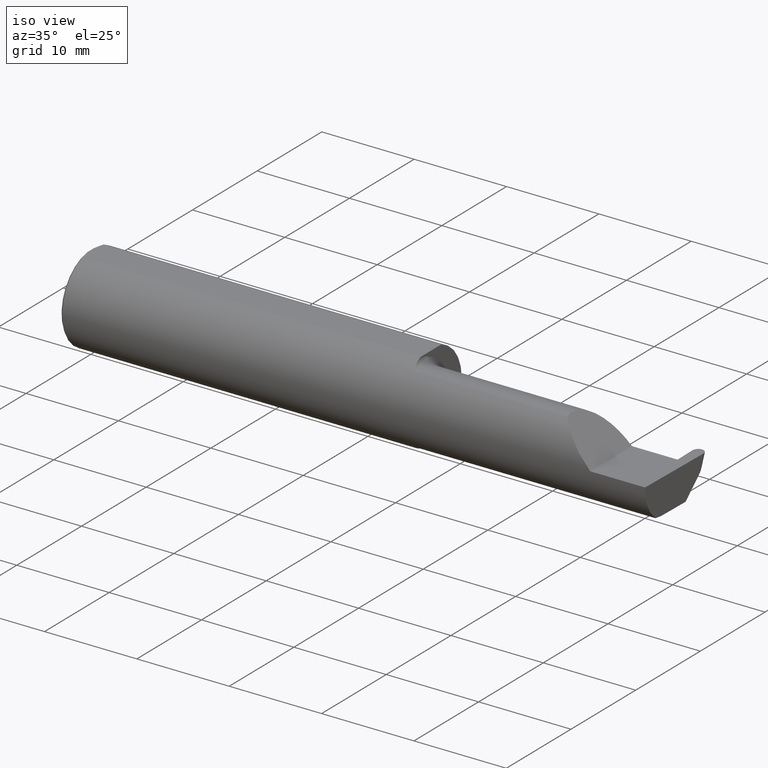
[diagram: clean part render]
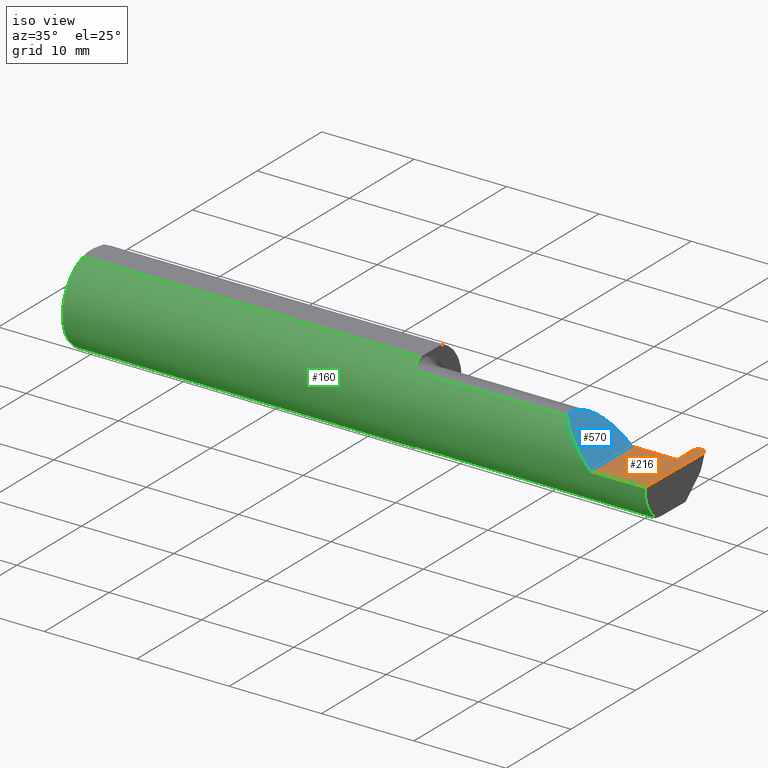
[diagram: same view with three faces highlighted in distinct colors, each labeled with its STEP entity id]
A machine part, iso view with three faces highlighted in distinct colors.
Their STEP definitions:

[orange] entity #216 — the highlighted planar face has unit normal (-0, 0, -1).
#6 = FACE_OUTER_BOUND ( 'NONE', #439, .T. ) ;
#12 = LINE ( 'NONE', #443, #138 ) ;
#37 = EDGE_CURVE ( 'NONE', #70, #580, #574, .T. ) ;
#40 = EDGE_CURVE ( 'NONE', #251, #424, #516, .T. ) ;
#53 = CARTESIAN_POINT ( 'NONE',  ( -0.001039370078739994957, 0.1846500000000000363, 0.000000000000000000 ) ) ;
#55 = CARTESIAN_POINT ( 'NONE',  ( 2.454605571778825102, 0.06664999999999998703, 0.000000000000000000 ) ) ;
#67 = DIRECTION ( 'NONE',  ( -0.000000000000000000, 1.000000000000000000, -0.000000000000000000 ) ) ;
#70 = VERTEX_POINT ( 'NONE', #548 ) ;
#86 = DIRECTION ( 'NONE',  ( -0.01745240643727800564, 0.9998476951563912696, -0.000000000000000000 ) ) ;
#99 = ORIENTED_EDGE ( 'NONE', *, *, #126, .F. ) ;
#100 = ORIENTED_EDGE ( 'NONE', *, *, #37, .F. ) ;
#103 = CARTESIAN_POINT ( 'NONE',  ( 2.452725869110807366, 0.1743380937279881138, 2.910889271442055903E-18 ) ) ;
#123 = LINE ( 'NONE', #384, #347 ) ;
#124 = AXIS2_PLACEMENT_3D ( 'NONE', #377, #221, #154 ) ;
#126 = EDGE_CURVE ( 'NONE', #203, #332, #700, .T. ) ;
#128 = CARTESIAN_POINT ( 'NONE',  ( 2.260000000000000231, -0.1873499999999999888, 2.939152317953647352E-17 ) ) ;
#138 = VECTOR ( 'NONE', #336, 39.37007874015748143 ) ;
#139 = CARTESIAN_POINT ( 'NONE',  ( 2.499980319257137484, 0.1597972350660649687, 0.000000000000000000 ) ) ;
#142 = ORIENTED_EDGE ( 'NONE', *, *, #537, .F. ) ;
#144 = CARTESIAN_POINT ( 'NONE',  ( 2.452963582209922055, 0.1607195194005952010, 0.000000000000000000 ) ) ;
#154 = DIRECTION ( 'NONE',  ( -1.000000000000000000, 0.000000000000000000, 1.224646799147353947E-16 ) ) ;
#159 = DIRECTION ( 'NONE',  ( 1.000000000000000000, 9.674096982053045718E-15, -0.000000000000000000 ) ) ;
#166 = CARTESIAN_POINT ( 'NONE',  ( 2.476200268257601422, 0.1846500000000000363, 0.000000000000000000 ) ) ;
#183 = CARTESIAN_POINT ( 'NONE',  ( 2.476759731742398163, 0.1846500000000000363, 0.000000000000000000 ) ) ;
#203 = VERTEX_POINT ( 'NONE', #166 ) ;
#216 = ADVANCED_FACE ( 'NONE', ( #6 ), #533, .F. ) ;
#219 = CARTESIAN_POINT ( 'NONE',  ( 2.447545874117295739, 0.06664999999999991764, 0.000000000000000000 ) ) ;
#221 = DIRECTION ( 'NONE',  ( -1.224646799147353947E-16, 0.000000000000000000, -1.000000000000000000 ) ) ;
#231 = CARTESIAN_POINT ( 'NONE',  ( 2.454605571778825102, 0.06664999999999998703, 0.000000000000000000 ) ) ;
#247 = CARTESIAN_POINT ( 'NONE',  ( 2.499996417790078862, 0.1607195194005952565, 0.000000000000000000 ) ) ;
#248 = DIRECTION ( 'NONE',  ( -0.01745240643727575397, -0.9998476951563912696, 0.000000000000000000 ) ) ;
#251 = VERTEX_POINT ( 'NONE', #231 ) ;
#259 = VERTEX_POINT ( 'NONE', #128 ) ;
#263 = EDGE_CURVE ( 'NONE', #70, #332, #314, .T. ) ;
#273 = VECTOR ( 'NONE', #541, 39.37007874015748143 ) ;
#289 = CARTESIAN_POINT ( 'NONE',  ( 2.490599447477928052, 0.1846499999999998420, -1.730980851401792408E-18 ) ) ;
#311 = EDGE_CURVE ( 'NONE', #580, #259, #123, .T. ) ;
#314 =( BOUNDED_CURVE ( )  B_SPLINE_CURVE ( 3, ( #139, #554, #289, #183 ),
 .UNSPECIFIED., .F., .F. ) 
 B_SPLINE_CURVE_WITH_KNOTS ( ( 4, 4 ),
 ( 1.683182027770901534, 3.259781963246008996 ),
 .UNSPECIFIED. ) 
 CURVE ( )  GEOMETRIC_REPRESENTATION_ITEM ( )  RATIONAL_B_SPLINE_CURVE ( ( 1.000000000000000000, 0.8033679476376978101, 0.8033679476376978101, 1.000000000000000000 ) ) 
 REPRESENTATION_ITEM ( '' )  );
#315 = EDGE_CURVE ( 'NONE', #259, #652, #550, .T. ) ;
#332 = VERTEX_POINT ( 'NONE', #382 ) ;
#334 = DIRECTION ( 'NONE',  ( -1.000000000000000000, -0.000000000000000000, -0.000000000000000000 ) ) ;
#336 = DIRECTION ( 'NONE',  ( 1.000000000000000000, 5.107097978105302334E-17, 0.000000000000000000 ) ) ;
#345 = EDGE_CURVE ( 'NONE', #406, #251, #485, .T. ) ;
#347 = VECTOR ( 'NONE', #334, 39.37007874015748143 ) ;
#354 = VECTOR ( 'NONE', #86, 39.37007874015748143 ) ;
#362 = ORIENTED_EDGE ( 'NONE', *, *, #40, .F. ) ;
#363 = VECTOR ( 'NONE', #248, 39.37007874015748854 ) ;
#377 = CARTESIAN_POINT ( 'NONE',  ( 2.500000000000000000, -0.2500000000000000555, 0.000000000000000000 ) ) ;
#382 = CARTESIAN_POINT ( 'NONE',  ( 2.476759731742398163, 0.1846500000000000363, 0.000000000000000000 ) ) ;
#384 = CARTESIAN_POINT ( 'NONE',  ( 3.749399456654646757E-32, -0.1873499999999999610, 3.061616997868383634E-16 ) ) ;
#402 = ORIENTED_EDGE ( 'NONE', *, *, #416, .T. ) ;
#406 = VERTEX_POINT ( 'NONE', #219 ) ;
#416 = EDGE_CURVE ( 'NONE', #203, #424, #579, .T. ) ;
#424 = VERTEX_POINT ( 'NONE', #490 ) ;
#433 = CARTESIAN_POINT ( 'NONE',  ( 2.476200268257601422, 0.1846500000000000363, 0.000000000000000000 ) ) ;
#439 = EDGE_LOOP ( 'NONE', ( #99, #402, #362, #690, #142, #475, #526, #100, #624 ) ) ;
#443 = CARTESIAN_POINT ( 'NONE',  ( 1.450000000000000178, 0.06664999999999995928, 1.285879139104721225E-16 ) ) ;
#445 = CARTESIAN_POINT ( 'NONE',  ( 2.260000000000000231, -0.2500000000000000555, 2.939152317953647352E-17 ) ) ;
#475 = ORIENTED_EDGE ( 'NONE', *, *, #315, .F. ) ;
#485 = LINE ( 'NONE', #55, #592 ) ;
#490 = CARTESIAN_POINT ( 'NONE',  ( 2.452979680742863433, 0.1597972350660649687, 0.000000000000000000 ) ) ;
#512 = CARTESIAN_POINT ( 'NONE',  ( 2.260000000000000231, 0.06665000000000000091, 1.285879139104721225E-16 ) ) ;
#516 = LINE ( 'NONE', #144, #354 ) ;
#526 = ORIENTED_EDGE ( 'NONE', *, *, #311, .F. ) ;
#533 = PLANE ( 'NONE',  #124 ) ;
#537 = EDGE_CURVE ( 'NONE', #652, #406, #12, .T. ) ;
#541 = DIRECTION ( 'NONE',  ( 1.000000000000000000, -0.000000000000000000, -0.000000000000000000 ) ) ;
#548 = CARTESIAN_POINT ( 'NONE',  ( 2.499980319257137484, 0.1597972350660649687, 0.000000000000000000 ) ) ;
#550 = LINE ( 'NONE', #445, #680 ) ;
#554 = CARTESIAN_POINT ( 'NONE',  ( 2.500234130889192219, 0.1743380937279881138, -2.910889271442051666E-18 ) ) ;
#574 = LINE ( 'NONE', #247, #363 ) ;
#579 =( BOUNDED_CURVE ( )  B_SPLINE_CURVE ( 3, ( #433, #644, #103, #708 ),
 .UNSPECIFIED., .F., .T. ) 
 B_SPLINE_CURVE_WITH_KNOTS ( ( 4, 4 ),
 ( 6.164995997523367244, 7.741595932998476925 ),
 .UNSPECIFIED. ) 
 CURVE ( )  GEOMETRIC_REPRESENTATION_ITEM ( )  RATIONAL_B_SPLINE_CURVE ( ( 1.000000000000000000, 0.8033679476376971440, 0.8033679476376971440, 1.000000000000000000 ) ) 
 REPRESENTATION_ITEM ( '' )  );
#580 = VERTEX_POINT ( 'NONE', #610 ) ;
#592 = VECTOR ( 'NONE', #159, 39.37007874015748143 ) ;
#610 = CARTESIAN_POINT ( 'NONE',  ( 2.493920841729410753, -0.1873499999999999888, 0.000000000000000000 ) ) ;
#624 = ORIENTED_EDGE ( 'NONE', *, *, #263, .T. ) ;
#644 = CARTESIAN_POINT ( 'NONE',  ( 2.462360552522071089, 0.1846499999999998698, 1.730980851401795297E-18 ) ) ;
#652 = VERTEX_POINT ( 'NONE', #512 ) ;
#680 = VECTOR ( 'NONE', #67, 39.37007874015748143 ) ;
#690 = ORIENTED_EDGE ( 'NONE', *, *, #345, .F. ) ;
#700 = LINE ( 'NONE', #53, #273 ) ;
#708 = CARTESIAN_POINT ( 'NONE',  ( 2.452979680742863433, 0.1597972350660649687, 0.000000000000000000 ) ) ;

[blue] entity #570 — the highlighted planar face has unit normal (-0.7071, 0, -0.7071).
#14 = EDGE_CURVE ( 'NONE', #25, #652, #151, .T. ) ;
#25 = VERTEX_POINT ( 'NONE', #195 ) ;
#56 = CARTESIAN_POINT ( 'NONE',  ( 2.260000000000000231, -0.1873499999999999888, 2.939152317953647352E-17 ) ) ;
#64 = FACE_OUTER_BOUND ( 'NONE', #564, .T. ) ;
#67 = DIRECTION ( 'NONE',  ( -0.000000000000000000, 1.000000000000000000, -0.000000000000000000 ) ) ;
#90 = CARTESIAN_POINT ( 'NONE',  ( 2.113883229301068312, -0.1172600179964011224, 0.1461167706989300596 ) ) ;
#128 = CARTESIAN_POINT ( 'NONE',  ( 2.260000000000000231, -0.1873499999999999888, 2.939152317953647352E-17 ) ) ;
#130 = DIRECTION ( 'NONE',  ( -0.7071067811865509034, 0.000000000000000000, 0.7071067811865440200 ) ) ;
#148 = EDGE_CURVE ( 'NONE', #259, #25, #246, .T. ) ;
#151 =( BOUNDED_CURVE ( )  B_SPLINE_CURVE ( 3, ( #90, #683, #520, #464 ),
 .UNSPECIFIED., .F., .F. ) 
 B_SPLINE_CURVE_WITH_KNOTS ( ( 4, 4 ),
 ( 6.055147272130139591, 7.853981633974482790 ),
 .UNSPECIFIED. ) 
 CURVE ( )  GEOMETRIC_REPRESENTATION_ITEM ( )  RATIONAL_B_SPLINE_CURVE ( ( 1.000000000000000000, 0.7480442670255260662, 0.7480442670255260662, 1.000000000000000000 ) ) 
 REPRESENTATION_ITEM ( '' )  );
#174 = ORIENTED_EDGE ( 'NONE', *, *, #14, .F. ) ;
#195 = CARTESIAN_POINT ( 'NONE',  ( 2.113883229301068312, -0.1172600179964011224, 0.1461167706989300596 ) ) ;
#246 =( BOUNDED_CURVE ( )  B_SPLINE_CURVE ( 3, ( #56, #328, #372, #267 ),
 .UNSPECIFIED., .F., .F. ) 
 B_SPLINE_CURVE_WITH_KNOTS ( ( 4, 4 ),
 ( 4.712388980384688786, 5.606916381293133966 ),
 .UNSPECIFIED. ) 
 CURVE ( )  GEOMETRIC_REPRESENTATION_ITEM ( )  RATIONAL_B_SPLINE_CURVE ( ( 1.000000000000000000, 0.9344226172588806500, 0.9344226172588806500, 1.000000000000000000 ) ) 
 REPRESENTATION_ITEM ( '' )  );
#259 = VERTEX_POINT ( 'NONE', #128 ) ;
#267 = CARTESIAN_POINT ( 'NONE',  ( 2.113883229301068312, -0.1172600179964011224, 0.1461167706989300596 ) ) ;
#277 = CARTESIAN_POINT ( 'NONE',  ( 2.260000000000000231, -0.2500000000000000555, 2.939152317953647352E-17 ) ) ;
#300 = ORIENTED_EDGE ( 'NONE', *, *, #315, .T. ) ;
#315 = EDGE_CURVE ( 'NONE', #259, #652, #550, .T. ) ;
#328 = CARTESIAN_POINT ( 'NONE',  ( 2.202189699843947857, -0.1873500000000000165, 0.05781030015605082700 ) ) ;
#372 = CARTESIAN_POINT ( 'NONE',  ( 2.150065971957465294, -0.1623470442677543146, 0.1099340280425333688 ) ) ;
#445 = CARTESIAN_POINT ( 'NONE',  ( 2.260000000000000231, -0.2500000000000000555, 2.939152317953647352E-17 ) ) ;
#459 = AXIS2_PLACEMENT_3D ( 'NONE', #277, #497, #130 ) ;
#464 = CARTESIAN_POINT ( 'NONE',  ( 2.260000000000000231, 0.06665000000000000091, 1.285879139104721225E-16 ) ) ;
#497 = DIRECTION ( 'NONE',  ( -0.7071067811865441310, 0.000000000000000000, -0.7071067811865510144 ) ) ;
#512 = CARTESIAN_POINT ( 'NONE',  ( 2.260000000000000231, 0.06665000000000000091, 1.285879139104721225E-16 ) ) ;
#520 = CARTESIAN_POINT ( 'NONE',  ( 2.155331797197862720, 0.06664999999999998703, 0.1046682028021363453 ) ) ;
#550 = LINE ( 'NONE', #445, #680 ) ;
#564 = EDGE_LOOP ( 'NONE', ( #174, #634, #300 ) ) ;
#570 = ADVANCED_FACE ( 'NONE', ( #64 ), #664, .F. ) ;
#634 = ORIENTED_EDGE ( 'NONE', *, *, #148, .F. ) ;
#652 = VERTEX_POINT ( 'NONE', #512 ) ;
#664 = PLANE ( 'NONE',  #459 ) ;
#680 = VECTOR ( 'NONE', #67, 39.37007874015748143 ) ;
#683 = CARTESIAN_POINT ( 'NONE',  ( 2.090221225029926355, -0.01530148607434194015, 0.1697787749700729321 ) ) ;

[green] entity #160 — the highlighted cylindrical surface (partial cylindrical patch) has radius 4.7587 mm, axis along (-1, -0, -0).
#1 = ORIENTED_EDGE ( 'NONE', *, *, #245, .F. ) ;
#4 = DIRECTION ( 'NONE',  ( 0.000000000000000000, 1.000000000000000000, 0.000000000000000000 ) ) ;
#5 = ORIENTED_EDGE ( 'NONE', *, *, #625, .F. ) ;
#15 = CIRCLE ( 'NONE', #602, 0.1873499999999999888 ) ;
#17 = DIRECTION ( 'NONE',  ( 0.000000000000000000, 0.000000000000000000, -1.000000000000000000 ) ) ;
#21 = CARTESIAN_POINT ( 'NONE',  ( 0.01000000000000013205, 0.000000000000000000, 0.000000000000000000 ) ) ;
#23 = CARTESIAN_POINT ( 'NONE',  ( 1.465004157323697376, -0.1137044537483316020, 0.1489098419202428691 ) ) ;
#25 = VERTEX_POINT ( 'NONE', #195 ) ;
#27 = CARTESIAN_POINT ( 'NONE',  ( 1.450000000000000178, 0.000000000000000000, 0.000000000000000000 ) ) ;
#31 = VERTEX_POINT ( 'NONE', #35 ) ;
#35 = CARTESIAN_POINT ( 'NONE',  ( 1.474999999999999867, -0.1172600179964005812, -0.1461167706989303650 ) ) ;
#39 = EDGE_CURVE ( 'NONE', #31, #238, #110, .T. ) ;
#41 = CARTESIAN_POINT ( 'NONE',  ( 1.450000000000000178, -0.06851976604679066440, -0.1743704796142198643 ) ) ;
#47 = VERTEX_POINT ( 'NONE', #463 ) ;
#56 = CARTESIAN_POINT ( 'NONE',  ( 2.260000000000000231, -0.1873499999999999888, 2.939152317953647352E-17 ) ) ;
#59 = VECTOR ( 'NONE', #547, 39.37007874015748143 ) ;
#63 = CARTESIAN_POINT ( 'NONE',  ( 1.452945243422983035, -0.09312071749437417223, 0.1626553472577906556 ) ) ;
#76 = CARTESIAN_POINT ( 'NONE',  ( 1.458475602106621638, -0.1064978748893405519, 0.1542035505680384444 ) ) ;
#93 = CARTESIAN_POINT ( 'NONE',  ( 1.458439486659307338, -0.1064616213911158682, -0.1542305641651500470 ) ) ;
#96 = ORIENTED_EDGE ( 'NONE', *, *, #514, .F. ) ;
#97 = CARTESIAN_POINT ( 'NONE',  ( 1.452960551809340473, -0.09317341542745746774, -0.1626248379125196930 ) ) ;
#107 = CARTESIAN_POINT ( 'NONE',  ( 2.493920841729410753, -0.1873499999999999888, 0.000000000000000000 ) ) ;
#110 = B_SPLINE_CURVE_WITH_KNOTS ( 'NONE', 3,
 ( #407, #466, #687, #412, #355, #93, #627, #97, #626, #193, #307, #41 ),
 .UNSPECIFIED., .F., .F.,
 ( 4, 2, 2, 2, 2, 4 ),
 ( 1.967976973658592312E-07, 0.0002120314145722273266, 0.0004238660314470887587, 0.0008475352651967989377, 0.001271204498946509279, 0.001694873732696219621 ),
 .UNSPECIFIED. ) ;
#113 = DIRECTION ( 'NONE',  ( -1.000000000000000000, -0.000000000000000000, -0.000000000000000000 ) ) ;
#119 = CARTESIAN_POINT ( 'NONE',  ( 1.450353553376444893, -0.07868116735658675642, 0.1701139256562800572 ) ) ;
#121 = AXIS2_PLACEMENT_3D ( 'NONE', #27, #454, #673 ) ;
#123 = LINE ( 'NONE', #384, #347 ) ;
#128 = CARTESIAN_POINT ( 'NONE',  ( 2.260000000000000231, -0.1873499999999999888, 2.939152317953647352E-17 ) ) ;
#145 = VERTEX_POINT ( 'NONE', #161 ) ;
#148 = EDGE_CURVE ( 'NONE', #259, #25, #246, .T. ) ;
#152 = CIRCLE ( 'NONE', #544, 0.1873499999999999888 ) ;
#157 = CARTESIAN_POINT ( 'NONE',  ( 0.01000000000000013205, -0.06325108694718235836, 0.1763499999999999235 ) ) ;
#160 = ADVANCED_FACE ( 'NONE', ( #381 ), #218, .T. ) ;
#161 = CARTESIAN_POINT ( 'NONE',  ( 1.474999999999999867, -0.1172600179964005812, 0.1461167706989303927 ) ) ;
#162 = ORIENTED_EDGE ( 'NONE', *, *, #565, .F. ) ;
#169 = VERTEX_POINT ( 'NONE', #157 ) ;
#176 = CARTESIAN_POINT ( 'NONE',  ( 1.474999999999999867, -0.1172600179964005812, 0.1461167706989303927 ) ) ;
#178 = CARTESIAN_POINT ( 'NONE',  ( 0.000000000000000000, 0.06325108694718235836, 0.1763499999999999235 ) ) ;
#179 = ORIENTED_EDGE ( 'NONE', *, *, #311, .T. ) ;
#185 = ORIENTED_EDGE ( 'NONE', *, *, #357, .F. ) ;
#193 = CARTESIAN_POINT ( 'NONE',  ( 1.450358271039144054, -0.07873626113568082951, -0.1700887912276896341 ) ) ;
#195 = CARTESIAN_POINT ( 'NONE',  ( 2.113883229301068312, -0.1172600179964011224, 0.1461167706989300596 ) ) ;
#204 = EDGE_LOOP ( 'NONE', ( #162, #495, #179, #707, #185, #590, #205, #1, #389, #211, #96, #5, #220 ) ) ;
#205 = ORIENTED_EDGE ( 'NONE', *, *, #392, .F. ) ;
#206 = CARTESIAN_POINT ( 'NONE',  ( 1.450000000000000178, 0.000000000000000000, 0.000000000000000000 ) ) ;
#209 = CARTESIAN_POINT ( 'NONE',  ( 2.490040979592266890, -0.1172600179964006090, -0.1461167706989303650 ) ) ;
#211 = ORIENTED_EDGE ( 'NONE', *, *, #622, .T. ) ;
#218 = CYLINDRICAL_SURFACE ( 'NONE', #388, 0.1873499999999999888 ) ;
#220 = ORIENTED_EDGE ( 'NONE', *, *, #39, .F. ) ;
#222 = CARTESIAN_POINT ( 'NONE',  ( 1.472161949849308371, -0.1172600179964060768, 0.1461167706989261184 ) ) ;
#238 = VERTEX_POINT ( 'NONE', #390 ) ;
#242 = EDGE_CURVE ( 'NONE', #169, #451, #692, .T. ) ;
#245 = EDGE_CURVE ( 'NONE', #169, #419, #283, .T. ) ;
#246 =( BOUNDED_CURVE ( )  B_SPLINE_CURVE ( 3, ( #56, #328, #372, #267 ),
 .UNSPECIFIED., .F., .F. ) 
 B_SPLINE_CURVE_WITH_KNOTS ( ( 4, 4 ),
 ( 4.712388980384688786, 5.606916381293133966 ),
 .UNSPECIFIED. ) 
 CURVE ( )  GEOMETRIC_REPRESENTATION_ITEM ( )  RATIONAL_B_SPLINE_CURVE ( ( 1.000000000000000000, 0.9344226172588806500, 0.9344226172588806500, 1.000000000000000000 ) ) 
 REPRESENTATION_ITEM ( '' )  );
#259 = VERTEX_POINT ( 'NONE', #128 ) ;
#267 = CARTESIAN_POINT ( 'NONE',  ( 2.113883229301068312, -0.1172600179964011224, 0.1461167706989300596 ) ) ;
#269 = DIRECTION ( 'NONE',  ( 1.000000000000000000, 5.107097978105302334E-17, 0.000000000000000000 ) ) ;
#283 = LINE ( 'NONE', #511, #630 ) ;
#296 = CARTESIAN_POINT ( 'NONE',  ( 1.451829077486400443, -0.08839624499054646312, 0.1652742498708037744 ) ) ;
#307 = CARTESIAN_POINT ( 'NONE',  ( 1.449999999999999512, -0.07368234487347195827, -0.1723418180300747282 ) ) ;
#311 = EDGE_CURVE ( 'NONE', #580, #259, #123, .T. ) ;
#325 = DIRECTION ( 'NONE',  ( 1.000000000000000000, 5.107097978105302334E-17, 0.000000000000000000 ) ) ;
#328 = CARTESIAN_POINT ( 'NONE',  ( 2.202189699843947857, -0.1873500000000000165, 0.05781030015605082700 ) ) ;
#329 = CARTESIAN_POINT ( 'NONE',  ( 1.463163223656403167, -0.1119926267047277324, 0.1502091925606063028 ) ) ;
#331 = VECTOR ( 'NONE', #269, 39.37007874015748143 ) ;
#334 = DIRECTION ( 'NONE',  ( -1.000000000000000000, -0.000000000000000000, -0.000000000000000000 ) ) ;
#339 = CARTESIAN_POINT ( 'NONE',  ( 0.01000000000000013205, 0.000000000000000000, 0.000000000000000000 ) ) ;
#343 = DIRECTION ( 'NONE',  ( 1.000000000000000000, 0.000000000000000000, 0.000000000000000000 ) ) ;
#347 = VECTOR ( 'NONE', #334, 39.37007874015748143 ) ;
#355 = CARTESIAN_POINT ( 'NONE',  ( 1.463203859946834440, -0.1120371980050638844, -0.1501764597936559309 ) ) ;
#357 = EDGE_CURVE ( 'NONE', #145, #25, #647, .T. ) ;
#360 = VERTEX_POINT ( 'NONE', #437 ) ;
#371 = CARTESIAN_POINT ( 'NONE',  ( 2.490517704308097713, -0.1623470442677541203, -0.1099340280425338823 ) ) ;
#372 = CARTESIAN_POINT ( 'NONE',  ( 2.150065971957465294, -0.1623470442677543146, 0.1099340280425333688 ) ) ;
#381 = FACE_OUTER_BOUND ( 'NONE', #204, .T. ) ;
#384 = CARTESIAN_POINT ( 'NONE',  ( 3.749399456654646757E-32, -0.1873499999999999610, 3.061616997868383634E-16 ) ) ;
#387 =( BOUNDED_CURVE ( )  B_SPLINE_CURVE ( 3, ( #209, #371, #587, #107 ),
 .UNSPECIFIED., .F., .F. ) 
 B_SPLINE_CURVE_WITH_KNOTS ( ( 4, 4 ),
 ( 0.2128041086811292559, 1.107331509589577045 ),
 .UNSPECIFIED. ) 
 CURVE ( )  GEOMETRIC_REPRESENTATION_ITEM ( )  RATIONAL_B_SPLINE_CURVE ( ( 1.000000000000000000, 0.9344226172588802060, 0.9344226172588802060, 1.000000000000000000 ) ) 
 REPRESENTATION_ITEM ( '' )  );
#388 = AXIS2_PLACEMENT_3D ( 'NONE', #641, #113, #598 ) ;
#389 = ORIENTED_EDGE ( 'NONE', *, *, #242, .T. ) ;
#390 = CARTESIAN_POINT ( 'NONE',  ( 1.450000000000000178, -0.06851976604679066440, -0.1743704796142198643 ) ) ;
#392 = EDGE_CURVE ( 'NONE', #419, #47, #15, .T. ) ;
#394 = DIRECTION ( 'NONE',  ( 0.000000000000000000, 0.000000000000000000, -1.000000000000000000 ) ) ;
#401 = CARTESIAN_POINT ( 'NONE',  ( 1.449999999999999734, -0.07367581953296700736, 0.1723443821957854338 ) ) ;
#404 = B_SPLINE_CURVE_WITH_KNOTS ( 'NONE', 3,
 ( #599, #401, #119, #296, #63, #555, #76, #329, #23, #446, #222, #176 ),
 .UNSPECIFIED., .F., .F.,
 ( 4, 2, 2, 2, 2, 4 ),
 ( 4.423516731080825304E-05, 0.0004615475116586706503, 0.0008788598560065329730, 0.001296172200354395350, 0.001504828372528325834, 0.001713484544702256317 ),
 .UNSPECIFIED. ) ;
#407 = CARTESIAN_POINT ( 'NONE',  ( 1.474999999999999867, -0.1172600179964005812, -0.1461167706989303650 ) ) ;
#412 = CARTESIAN_POINT ( 'NONE',  ( 1.465028532764138580, -0.1137241120808235861, -0.1488947809299403513 ) ) ;
#419 = VERTEX_POINT ( 'NONE', #583 ) ;
#420 = CIRCLE ( 'NONE', #121, 0.1873499999999999888 ) ;
#422 = CARTESIAN_POINT ( 'NONE',  ( 2.490040979592266890, -0.1172600179964006090, -0.1461167706989303650 ) ) ;
#427 = VERTEX_POINT ( 'NONE', #422 ) ;
#432 = VECTOR ( 'NONE', #552, 39.37007874015748143 ) ;
#436 = EDGE_CURVE ( 'NONE', #427, #580, #387, .T. ) ;
#437 = CARTESIAN_POINT ( 'NONE',  ( 0.01000000000000013205, 0.06325108694718235836, 0.1763499999999999235 ) ) ;
#446 = CARTESIAN_POINT ( 'NONE',  ( 1.469481469043492083, -0.1163560528186165510, 0.1468472430636323656 ) ) ;
#447 = CARTESIAN_POINT ( 'NONE',  ( 1.963980000000000059, -0.1172600179964006506, -0.1461167706989303650 ) ) ;
#451 = VERTEX_POINT ( 'NONE', #617 ) ;
#454 = DIRECTION ( 'NONE',  ( 1.000000000000000000, 5.107097978105302334E-17, 0.000000000000000000 ) ) ;
#463 = CARTESIAN_POINT ( 'NONE',  ( 1.450000000000000178, -0.06851976604679066440, 0.1743704796142198643 ) ) ;
#466 = CARTESIAN_POINT ( 'NONE',  ( 1.472174967710399462, -0.1172600179964005812, -0.1461167706989303927 ) ) ;
#472 = AXIS2_PLACEMENT_3D ( 'NONE', #21, #343, #394 ) ;
#477 = CARTESIAN_POINT ( 'NONE',  ( 1.963980000000000059, -0.1172600179964006506, 0.1461167706989303650 ) ) ;
#480 = VERTEX_POINT ( 'NONE', #556 ) ;
#495 = ORIENTED_EDGE ( 'NONE', *, *, #436, .T. ) ;
#500 = LINE ( 'NONE', #447, #59 ) ;
#511 = CARTESIAN_POINT ( 'NONE',  ( 0.000000000000000000, -0.06325108694718235836, 0.1763499999999999235 ) ) ;
#514 = EDGE_CURVE ( 'NONE', #480, #360, #611, .T. ) ;
#544 = AXIS2_PLACEMENT_3D ( 'NONE', #339, #661, #17 ) ;
#547 = DIRECTION ( 'NONE',  ( -1.000000000000000000, -5.107097978105302334E-17, -0.000000000000000000 ) ) ;
#552 = DIRECTION ( 'NONE',  ( -1.000000000000000000, -0.000000000000000000, -0.000000000000000000 ) ) ;
#555 = CARTESIAN_POINT ( 'NONE',  ( 1.456287624083520083, -0.1021858045380144436, 0.1571187174372875028 ) ) ;
#556 = CARTESIAN_POINT ( 'NONE',  ( 1.450000000000000178, 0.06325108694718235836, 0.1763499999999999235 ) ) ;
#565 = EDGE_CURVE ( 'NONE', #427, #31, #500, .T. ) ;
#580 = VERTEX_POINT ( 'NONE', #610 ) ;
#583 = CARTESIAN_POINT ( 'NONE',  ( 1.450000000000000178, -0.06325108694718287183, 0.1763499999999999235 ) ) ;
#586 = EDGE_CURVE ( 'NONE', #47, #145, #404, .T. ) ;
#587 = CARTESIAN_POINT ( 'NONE',  ( 2.491901754046578876, -0.1873499999999999610, -0.05781030015605125721 ) ) ;
#590 = ORIENTED_EDGE ( 'NONE', *, *, #586, .F. ) ;
#598 = DIRECTION ( 'NONE',  ( 0.000000000000000000, 0.000000000000000000, 1.000000000000000000 ) ) ;
#599 = CARTESIAN_POINT ( 'NONE',  ( 1.450000000000000178, -0.06851976604679066440, 0.1743704796142198643 ) ) ;
#602 = AXIS2_PLACEMENT_3D ( 'NONE', #206, #325, #4 ) ;
#610 = CARTESIAN_POINT ( 'NONE',  ( 2.493920841729410753, -0.1873499999999999888, 0.000000000000000000 ) ) ;
#611 = LINE ( 'NONE', #178, #432 ) ;
#617 = CARTESIAN_POINT ( 'NONE',  ( 0.01000000000000013205, 0.000000000000000000, -0.1873499999999999888 ) ) ;
#622 = EDGE_CURVE ( 'NONE', #451, #360, #152, .T. ) ;
#625 = EDGE_CURVE ( 'NONE', #238, #480, #420, .T. ) ;
#626 = CARTESIAN_POINT ( 'NONE',  ( 1.451843912362378308, -0.08846956905169092722, -0.1652353808078972086 ) ) ;
#627 = CARTESIAN_POINT ( 'NONE',  ( 1.456304331342287872, -0.1022198306720690925, -0.1570962426853818594 ) ) ;
#630 = VECTOR ( 'NONE', #657, 39.37007874015748143 ) ;
#641 = CARTESIAN_POINT ( 'NONE',  ( 0.000000000000000000, 0.000000000000000000, 0.000000000000000000 ) ) ;
#647 = LINE ( 'NONE', #477, #331 ) ;
#657 = DIRECTION ( 'NONE',  ( 1.000000000000000000, 0.000000000000000000, 0.000000000000000000 ) ) ;
#661 = DIRECTION ( 'NONE',  ( 1.000000000000000000, 0.000000000000000000, 0.000000000000000000 ) ) ;
#673 = DIRECTION ( 'NONE',  ( 0.000000000000000000, 1.000000000000000000, 0.000000000000000000 ) ) ;
#687 = CARTESIAN_POINT ( 'NONE',  ( 1.469511795768554840, -0.1163687266324234804, -0.1468371510166788796 ) ) ;
#692 = CIRCLE ( 'NONE', #472, 0.1873499999999999888 ) ;
#707 = ORIENTED_EDGE ( 'NONE', *, *, #148, .T. ) ;